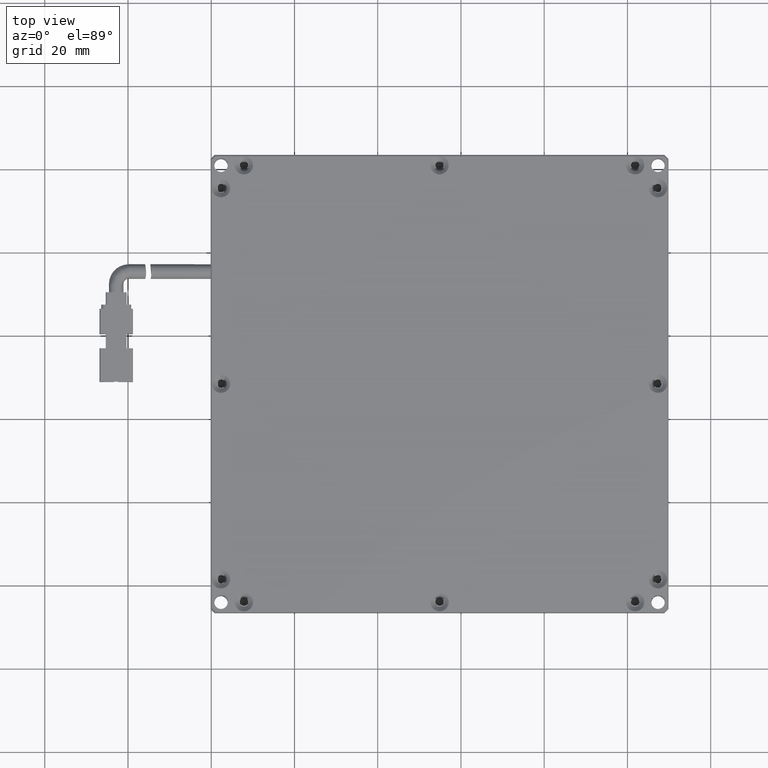
[diagram: clean part render]
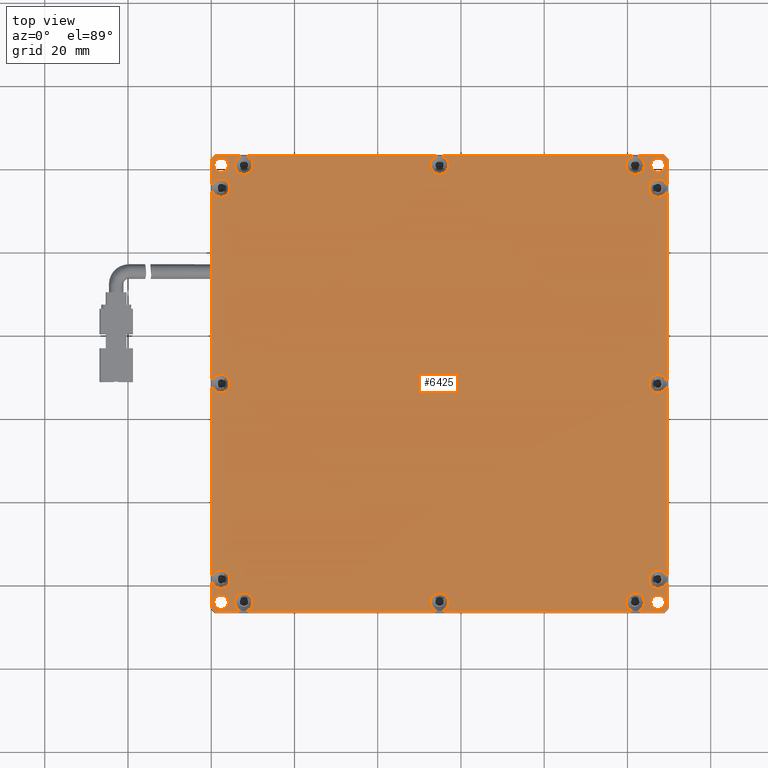
[diagram: same view with one face highlighted and labeled with its STEP entity id]
A machine part, top view. The second image highlights one B-rep face of the part: STEP entity #6425.
In plain terms, the highlighted planar face has unit normal (0, 0, -1).
Its self-contained STEP definition (entity closure, byte-faithful):
#85 = EDGE_CURVE ( 'NONE', #5199, #15568, #4372, .T. ) ;
#96 = CARTESIAN_POINT ( 'NONE',  ( 49.55490645284352500, 55.40015273005042200, 1.499999999976253900 ) ) ;
#155 = AXIS2_PLACEMENT_3D ( 'NONE', #5475, #15140, #6818 ) ;
#231 = CARTESIAN_POINT ( 'NONE',  ( -57.64509354715999500, 60.90015273004998200, 1.499999999976394900 ) ) ;
#249 = AXIS2_PLACEMENT_3D ( 'NONE', #1107, #10677, #2466 ) ;
#281 = AXIS2_PLACEMENT_3D ( 'NONE', #2898, #12512, #4283 ) ;
#357 = ORIENTED_EDGE ( 'NONE', *, *, #1238, .F. ) ;
#407 = DIRECTION ( 'NONE',  ( 1.000000000000000000, 0.0000000000000000000, 0.0000000000000000000 ) ) ;
#486 = VECTOR ( 'NONE', #16577, 999.9999999999998900 ) ;
#519 = ORIENTED_EDGE ( 'NONE', *, *, #7187, .F. ) ;
#542 = EDGE_CURVE ( 'NONE', #14744, #6458, #9240, .T. ) ;
#642 = AXIS2_PLACEMENT_3D ( 'NONE', #7497, #17238, #8880 ) ;
#687 = LINE ( 'NONE', #14745, #14904 ) ;
#710 = ORIENTED_EDGE ( 'NONE', *, *, #6946, .F. ) ;
#723 = VERTEX_POINT ( 'NONE', #6143 ) ;
#766 = CIRCLE ( 'NONE', #16352, 2.200000000007015900 ) ;
#779 = EDGE_CURVE ( 'NONE', #6064, #3502, #687, .T. ) ;
#782 = CARTESIAN_POINT ( 'NONE',  ( 47.35490645284001200, -44.09984726994999000, 1.499999999976394900 ) ) ;
#783 = CIRCLE ( 'NONE', #7937, 2.200000000007008800 ) ;
#785 = EDGE_CURVE ( 'NONE', #2495, #4026, #1968, .T. ) ;
#795 = VECTOR ( 'NONE', #6068, 1000.000000000000000 ) ;
#874 = VERTEX_POINT ( 'NONE', #3578 ) ;
#931 = VECTOR ( 'NONE', #8991, 1000.000000000000000 ) ;
#936 = CIRCLE ( 'NONE', #16247, 2.200000000007036800 ) ;
#947 = CARTESIAN_POINT ( 'NONE',  ( -49.94509354715299300, -44.09984726994999000, 1.499999999976502800 ) ) ;
#968 = EDGE_LOOP ( 'NONE', ( #1049, #10871 ) ) ;
#978 = EDGE_LOOP ( 'NONE', ( #10163, #10316 ) ) ;
#999 = CARTESIAN_POINT ( 'NONE',  ( -59.84509354716350800, -38.59984726995022400, 1.499999999976253400 ) ) ;
#1049 = ORIENTED_EDGE ( 'NONE', *, *, #12624, .F. ) ;
#1071 = ORIENTED_EDGE ( 'NONE', *, *, #6629, .F. ) ;
#1076 = DIRECTION ( 'NONE',  ( 1.000000000000000000, 0.0000000000000000000, 0.0000000000000000000 ) ) ;
#1096 = EDGE_CURVE ( 'NONE', #11779, #2130, #6961, .T. ) ;
#1107 = CARTESIAN_POINT ( 'NONE',  ( -57.64509354715999500, -44.09984726994999000, 1.499999999976394900 ) ) ;
#1118 = FACE_OUTER_BOUND ( 'NONE', #14665, .T. ) ;
#1141 = EDGE_CURVE ( 'NONE', #1596, #2858, #2480, .T. ) ;
#1175 = DIRECTION ( 'NONE',  ( 0.0000000000000000000, -1.000000000000000000, 0.0000000000000000000 ) ) ;
#1238 = EDGE_CURVE ( 'NONE', #13650, #14744, #17404, .T. ) ;
#1250 = DIRECTION ( 'NONE',  ( 1.000000000000000000, 0.0000000000000000000, 0.0000000000000000000 ) ) ;
#1285 = ORIENTED_EDGE ( 'NONE', *, *, #8982, .F. ) ;
#1302 = ORIENTED_EDGE ( 'NONE', *, *, #4347, .F. ) ;
#1309 = DIRECTION ( 'NONE',  ( 1.000000000000000000, 0.0000000000000000000, 0.0000000000000000000 ) ) ;
#1311 = CARTESIAN_POINT ( 'NONE',  ( -5.145093547154998800, 60.90015273004998200, 1.499999999976502800 ) ) ;
#1350 = CIRCLE ( 'NONE', #11545, 1.749999999999987600 ) ;
#1358 = DIRECTION ( 'NONE',  ( 1.000000000000000000, 0.0000000000000000000, 0.0000000000000000000 ) ) ;
#1359 = EDGE_CURVE ( 'NONE', #3502, #13005, #766, .T. ) ;
#1418 = AXIS2_PLACEMENT_3D ( 'NONE', #3795, #13427, #5176 ) ;
#1432 = AXIS2_PLACEMENT_3D ( 'NONE', #16194, #7842, #17579 ) ;
#1492 = DIRECTION ( 'NONE',  ( 0.0000000000000000000, 0.0000000000000000000, 1.000000000000000000 ) ) ;
#1528 = ORIENTED_EDGE ( 'NONE', *, *, #85, .F. ) ;
#1542 = FACE_BOUND ( 'NONE', #2755, .T. ) ;
#1568 = DIRECTION ( 'NONE',  ( 0.0000000000000000000, 2.464095846551414100E-017, 1.000000000000000000 ) ) ;
#1573 = VERTEX_POINT ( 'NONE', #12305 ) ;
#1578 = CARTESIAN_POINT ( 'NONE',  ( -5.145093547160004600, 63.10015273004995600, 1.499999999975999600 ) ) ;
#1596 = VERTEX_POINT ( 'NONE', #947 ) ;
#1607 = DIRECTION ( 'NONE',  ( 1.000000000000000000, 0.0000000000000000000, 0.0000000000000000000 ) ) ;
#1645 = LINE ( 'NONE', #4158, #6344 ) ;
#1689 = ORIENTED_EDGE ( 'NONE', *, *, #4419, .F. ) ;
#1705 = EDGE_CURVE ( 'NONE', #1843, #4830, #4160, .T. ) ;
#1727 = EDGE_CURVE ( 'NONE', #2130, #5785, #13422, .T. ) ;
#1751 = CARTESIAN_POINT ( 'NONE',  ( -57.64509354715999500, 55.40015273004998200, 1.499999999976499900 ) ) ;
#1776 = ORIENTED_EDGE ( 'NONE', *, *, #9325, .F. ) ;
#1803 = CARTESIAN_POINT ( 'NONE',  ( -54.34509354716699600, 60.90015273004998200, 1.499999999976502800 ) ) ;
#1843 = VERTEX_POINT ( 'NONE', #17612 ) ;
#1877 = AXIS2_PLACEMENT_3D ( 'NONE', #14486, #6202, #15904 ) ;
#1882 = AXIS2_PLACEMENT_3D ( 'NONE', #11861, #3619, #13250 ) ;
#1895 = AXIS2_PLACEMENT_3D ( 'NONE', #13646, #9497, #1309 ) ;
#1953 = AXIS2_PLACEMENT_3D ( 'NONE', #13369, #5121, #14774 ) ;
#1967 = CARTESIAN_POINT ( 'NONE',  ( -5.145093547160004600, -46.29984726994998600, 1.499999999975999600 ) ) ;
#1968 = CIRCLE ( 'NONE', #10250, 1.749999999999994700 ) ;
#2041 = CARTESIAN_POINT ( 'NONE',  ( -59.84509354715999800, 8.400152730050001200, 1.499999999975999600 ) ) ;
#2054 = EDGE_CURVE ( 'NONE', #3502, #4830, #11875, .T. ) ;
#2096 = AXIS2_PLACEMENT_3D ( 'NONE', #13604, #5334, #15011 ) ;
#2105 = DIRECTION ( 'NONE',  ( -1.000000000000000000, 0.0000000000000000000, 0.0000000000000000000 ) ) ;
#2130 = VERTEX_POINT ( 'NONE', #14668 ) ;
#2148 = VERTEX_POINT ( 'NONE', #999 ) ;
#2149 = DIRECTION ( 'NONE',  ( 1.000000000000000000, 0.0000000000000000000, 0.0000000000000000000 ) ) ;
#2211 = CIRCLE ( 'NONE', #4812, 2.200000000007022600 ) ;
#2240 = CARTESIAN_POINT ( 'NONE',  ( 49.55490645284352500, -38.59984726994954200, 1.499999999976253900 ) ) ;
#2265 = EDGE_CURVE ( 'NONE', #11249, #6064, #7729, .T. ) ;
#2271 = DIRECTION ( 'NONE',  ( 1.000000000000000000, -0.0000000000000000000, -0.0000000000000000000 ) ) ;
#2332 = CARTESIAN_POINT ( 'NONE',  ( -59.02082947844517200, 63.10015273004943000, 1.499999999974211700 ) ) ;
#2399 = EDGE_CURVE ( 'NONE', #11232, #874, #12889, .T. ) ;
#2466 = DIRECTION ( 'NONE',  ( 1.000000000000000000, 0.0000000000000000000, 0.0000000000000000000 ) ) ;
#2480 = CIRCLE ( 'NONE', #1895, 2.200000000007001700 ) ;
#2495 = VERTEX_POINT ( 'NONE', #10078 ) ;
#2520 = DIRECTION ( 'NONE',  ( 0.0000000000000000000, 0.0000000000000000000, 1.000000000000000000 ) ) ;
#2524 = VERTEX_POINT ( 'NONE', #14332 ) ;
#2534 = ORIENTED_EDGE ( 'NONE', *, *, #6037, .F. ) ;
#2538 = CARTESIAN_POINT ( 'NONE',  ( -57.64509354715999500, -38.59984726995000400, 1.499999999976499900 ) ) ;
#2546 = ORIENTED_EDGE ( 'NONE', *, *, #15579, .F. ) ;
#2566 = ORIENTED_EDGE ( 'NONE', *, *, #1096, .F. ) ;
#2616 = VERTEX_POINT ( 'NONE', #14521 ) ;
#2651 = DIRECTION ( 'NONE',  ( 1.000000000000000000, -0.0000000000000000000, -0.0000000000000000000 ) ) ;
#2678 = DIRECTION ( 'NONE',  ( 1.000000000000000000, 0.0000000000000000000, 0.0000000000000000000 ) ) ;
#2683 = LINE ( 'NONE', #13001, #13241 ) ;
#2685 = DIRECTION ( 'NONE',  ( 1.000000000000000000, 0.0000000000000000000, 0.0000000000000000000 ) ) ;
#2755 = EDGE_LOOP ( 'NONE', ( #1285, #519 ) ) ;
#2769 = DIRECTION ( 'NONE',  ( 0.0000000000000000000, -0.0000000000000000000, 1.000000000000000000 ) ) ;
#2778 = AXIS2_PLACEMENT_3D ( 'NONE', #7754, #17492, #9129 ) ;
#2790 = ORIENTED_EDGE ( 'NONE', *, *, #7610, .F. ) ;
#2846 = CARTESIAN_POINT ( 'NONE',  ( -52.14509354715999500, -44.09984726994999000, 1.499999999976502800 ) ) ;
#2858 = VERTEX_POINT ( 'NONE', #16605 ) ;
#2891 = VECTOR ( 'NONE', #2105, 1000.000000000000000 ) ;
#2898 = CARTESIAN_POINT ( 'NONE',  ( 47.35490645284001200, 55.40015273004998200, 1.499999999976507500 ) ) ;
#2912 = DIRECTION ( 'NONE',  ( 0.0000000000000000000, -0.0000000000000000000, 1.000000000000000000 ) ) ;
#2992 = CARTESIAN_POINT ( 'NONE',  ( -5.145093547154998800, 60.90015273004998200, 1.499999999976502800 ) ) ;
#3067 = ORIENTED_EDGE ( 'NONE', *, *, #13908, .F. ) ;
#3089 = ORIENTED_EDGE ( 'NONE', *, *, #10741, .F. ) ;
#3104 = CARTESIAN_POINT ( 'NONE',  ( 39.65490645283296100, 60.90015273004998200, 1.499999999976501000 ) ) ;
#3114 = DIRECTION ( 'NONE',  ( 0.0000000000000000000, -1.000000000000000000, 0.0000000000000000000 ) ) ;
#3188 = EDGE_CURVE ( 'NONE', #3623, #9952, #17419, .T. ) ;
#3253 = VERTEX_POINT ( 'NONE', #15007 ) ;
#3271 = CARTESIAN_POINT ( 'NONE',  ( -59.84509354715999800, 8.400152730050001200, 1.499999999975999600 ) ) ;
#3366 = AXIS2_PLACEMENT_3D ( 'NONE', #10981, #2769, #12384 ) ;
#3481 = VERTEX_POINT ( 'NONE', #3104 ) ;
#3502 = VERTEX_POINT ( 'NONE', #16947 ) ;
#3578 = CARTESIAN_POINT ( 'NONE',  ( -55.89509354716000200, 60.90015273004998200, 1.499999999976394900 ) ) ;
#3598 = CARTESIAN_POINT ( 'NONE',  ( -55.89509354716000200, -44.09984726994999000, 1.499999999976394900 ) ) ;
#3619 = DIRECTION ( 'NONE',  ( 0.0000000000000000000, -0.0000000000000000000, 1.000000000000000000 ) ) ;
#3623 = VERTEX_POINT ( 'NONE', #10532 ) ;
#3690 = CARTESIAN_POINT ( 'NONE',  ( -57.64509354715999500, -40.79984726995701300, 1.499999999976499900 ) ) ;
#3740 = VERTEX_POINT ( 'NONE', #10872 ) ;
#3773 = CARTESIAN_POINT ( 'NONE',  ( 49.55490645284000100, 8.400152730049994100, 1.499999999975999600 ) ) ;
#3795 = CARTESIAN_POINT ( 'NONE',  ( -52.14509354715999500, 60.90015273004998200, 1.499999999976502800 ) ) ;
#3896 = LINE ( 'NONE', #3773, #7071 ) ;
#3932 = DIRECTION ( 'NONE',  ( 0.0000000000000000000, -1.000000000000000000, 0.0000000000000000000 ) ) ;
#3984 = CARTESIAN_POINT ( 'NONE',  ( 47.35490645284001200, -38.59984726995000400, 1.499999999976507500 ) ) ;
#3996 = EDGE_CURVE ( 'NONE', #15568, #3740, #5994, .T. ) ;
#4009 = CIRCLE ( 'NONE', #1432, 2.200000000007015900 ) ;
#4026 = VERTEX_POINT ( 'NONE', #4765 ) ;
#4126 = LINE ( 'NONE', #15155, #486 ) ;
#4135 = EDGE_CURVE ( 'NONE', #14626, #1596, #7238, .T. ) ;
#4158 = CARTESIAN_POINT ( 'NONE',  ( 48.73064238413891800, 63.10015273004886200, 1.499999999974435100 ) ) ;
#4160 = CIRCLE ( 'NONE', #10768, 2.200000000007022600 ) ;
#4195 = CARTESIAN_POINT ( 'NONE',  ( 44.05490645284703500, 60.90015273004998200, 1.499999999976501000 ) ) ;
#4226 = DIRECTION ( 'NONE',  ( 1.000000000000000000, 0.0000000000000000000, 0.0000000000000000000 ) ) ;
#4283 = DIRECTION ( 'NONE',  ( 1.000000000000000000, 0.0000000000000000000, 0.0000000000000000000 ) ) ;
#4347 = EDGE_CURVE ( 'NONE', #3253, #3481, #12649, .T. ) ;
#4372 = CIRCLE ( 'NONE', #15651, 2.200000000007008800 ) ;
#4374 = DIRECTION ( 'NONE',  ( 1.000000000000000000, 0.0000000000000000000, 0.0000000000000000000 ) ) ;
#4419 = EDGE_CURVE ( 'NONE', #15780, #9700, #7221, .T. ) ;
#4532 = EDGE_CURVE ( 'NONE', #6064, #11249, #11995, .T. ) ;
#4543 = DIRECTION ( 'NONE',  ( -0.0000000000000000000, -1.000000000000000000, -0.0000000000000000000 ) ) ;
#4584 = CARTESIAN_POINT ( 'NONE',  ( 48.73064238413535100, -46.29984726994883500, 1.499999999972905000 ) ) ;
#4724 = DIRECTION ( 'NONE',  ( -0.0000000000000000000, -1.000000000000000000, -0.0000000000000000000 ) ) ;
#4755 = FACE_BOUND ( 'NONE', #968, .T. ) ;
#4765 = CARTESIAN_POINT ( 'NONE',  ( 45.60490645284001900, 60.90015273004998200, 1.499999999976394900 ) ) ;
#4769 = DIRECTION ( 'NONE',  ( 0.0000000000000000000, -0.0000000000000000000, 1.000000000000000000 ) ) ;
#4812 = AXIS2_PLACEMENT_3D ( 'NONE', #3984, #13638, #5370 ) ;
#4830 = VERTEX_POINT ( 'NONE', #2240 ) ;
#4868 = VECTOR ( 'NONE', #2651, 1000.000000000000000 ) ;
#4881 = EDGE_CURVE ( 'NONE', #13005, #3502, #4009, .T. ) ;
#4911 = CIRCLE ( 'NONE', #2778, 2.199999999999511200 ) ;
#5036 = CARTESIAN_POINT ( 'NONE',  ( 48.73064238413660100, 63.10015273005134900, 1.499999999974948500 ) ) ;
#5120 = ORIENTED_EDGE ( 'NONE', *, *, #10886, .F. ) ;
#5121 = DIRECTION ( 'NONE',  ( 0.0000000000000000000, 0.0000000000000000000, -1.000000000000000000 ) ) ;
#5176 = DIRECTION ( 'NONE',  ( 1.000000000000000000, 0.0000000000000000000, 0.0000000000000000000 ) ) ;
#5199 = VERTEX_POINT ( 'NONE', #5929 ) ;
#5311 = CIRCLE ( 'NONE', #16312, 2.199999999999511200 ) ;
#5314 = DIRECTION ( 'NONE',  ( 0.0000000000000000000, -1.000000000000000000, 0.0000000000000000000 ) ) ;
#5334 = DIRECTION ( 'NONE',  ( 0.0000000000000000000, 2.464095846551420200E-017, 1.000000000000000000 ) ) ;
#5342 = DIRECTION ( 'NONE',  ( 0.0000000000000000000, -0.0000000000000000000, 1.000000000000000000 ) ) ;
#5370 = DIRECTION ( 'NONE',  ( 1.000000000000000000, 0.0000000000000000000, 0.0000000000000000000 ) ) ;
#5395 = CARTESIAN_POINT ( 'NONE',  ( -57.64509354715999500, 10.60015273005700800, 1.499999999976503200 ) ) ;
#5413 = AXIS2_PLACEMENT_3D ( 'NONE', #13016, #4769, #14416 ) ;
#5475 = CARTESIAN_POINT ( 'NONE',  ( -52.14509354715999500, 60.90015273004998200, 1.499999999976502800 ) ) ;
#5562 = CARTESIAN_POINT ( 'NONE',  ( 41.85490645283999800, -44.09984726994999000, 1.499999999976497900 ) ) ;
#5574 = VECTOR ( 'NONE', #14298, 1000.000000000000000 ) ;
#5648 = ORIENTED_EDGE ( 'NONE', *, *, #9015, .F. ) ;
#5664 = ORIENTED_EDGE ( 'NONE', *, *, #8401, .F. ) ;
#5737 = ORIENTED_EDGE ( 'NONE', *, *, #9373, .F. ) ;
#5764 = DIRECTION ( 'NONE',  ( 0.0000000000000000000, -0.0000000000000000000, 1.000000000000000000 ) ) ;
#5785 = VERTEX_POINT ( 'NONE', #6262 ) ;
#5898 = CIRCLE ( 'NONE', #1877, 1.749999999999994700 ) ;
#5902 = CIRCLE ( 'NONE', #14452, 1.749999999999994700 ) ;
#5929 = CARTESIAN_POINT ( 'NONE',  ( -57.64509354715999500, 57.60015273005699000, 1.499999999976499900 ) ) ;
#5930 = ORIENTED_EDGE ( 'NONE', *, *, #16295, .F. ) ;
#5940 = EDGE_CURVE ( 'NONE', #4830, #1843, #2211, .T. ) ;
#5994 = LINE ( 'NONE', #3271, #5574 ) ;
#6037 = EDGE_CURVE ( 'NONE', #2858, #14626, #12756, .T. ) ;
#6064 = VERTEX_POINT ( 'NONE', #96 ) ;
#6068 = DIRECTION ( 'NONE',  ( -0.7071067811894643500, 0.7071067811836307900, -3.174797948382893600E-012 ) ) ;
#6082 = VERTEX_POINT ( 'NONE', #15281 ) ;
#6105 = CARTESIAN_POINT ( 'NONE',  ( 45.60490645284001900, -44.09984726994999000, 1.499999999976394900 ) ) ;
#6143 = CARTESIAN_POINT ( 'NONE',  ( -5.145093547157158800, -46.29984726994974400, 1.499999999976251400 ) ) ;
#6202 = DIRECTION ( 'NONE',  ( 0.0000000000000000000, 0.0000000000000000000, 1.000000000000000000 ) ) ;
#6231 = VERTEX_POINT ( 'NONE', #4584 ) ;
#6262 = CARTESIAN_POINT ( 'NONE',  ( -57.64509354715999500, 6.200152730042989700, 1.499999999976503200 ) ) ;
#6296 = CARTESIAN_POINT ( 'NONE',  ( -59.84509354715999800, 8.400152730050001200, 1.499999999975999600 ) ) ;
#6342 = DIRECTION ( 'NONE',  ( 0.0000000000000000000, 2.464095846559238600E-017, 1.000000000000000000 ) ) ;
#6344 = VECTOR ( 'NONE', #13849, 1000.000000000000000 ) ;
#6425 = ADVANCED_FACE ( 'NONE', ( #1542, #8812, #8366, #4755, #1118 ), #7790, .F. ) ;
#6458 = VERTEX_POINT ( 'NONE', #17580 ) ;
#6629 = EDGE_CURVE ( 'NONE', #14626, #2524, #8791, .T. ) ;
#6797 = EDGE_CURVE ( 'NONE', #6231, #13650, #7916, .T. ) ;
#6806 = ORIENTED_EDGE ( 'NONE', *, *, #8226, .F. ) ;
#6818 = DIRECTION ( 'NONE',  ( 1.000000000000000000, 0.0000000000000000000, 0.0000000000000000000 ) ) ;
#6844 = ORIENTED_EDGE ( 'NONE', *, *, #1705, .F. ) ;
#6938 = ORIENTED_EDGE ( 'NONE', *, *, #2265, .F. ) ;
#6946 = EDGE_CURVE ( 'NONE', #3253, #10613, #12884, .T. ) ;
#6961 = CIRCLE ( 'NONE', #16129, 2.200000000007008800 ) ;
#7065 = VERTEX_POINT ( 'NONE', #13119 ) ;
#7071 = VECTOR ( 'NONE', #13406, 1000.000000000000000 ) ;
#7095 = CIRCLE ( 'NONE', #7852, 2.200000000007008800 ) ;
#7113 = VERTEX_POINT ( 'NONE', #16084 ) ;
#7187 = EDGE_CURVE ( 'NONE', #7065, #10054, #11568, .T. ) ;
#7204 = AXIS2_PLACEMENT_3D ( 'NONE', #17794, #9426, #1250 ) ;
#7220 = CIRCLE ( 'NONE', #16444, 2.200000000007001700 ) ;
#7221 = LINE ( 'NONE', #1578, #14174 ) ;
#7238 = CIRCLE ( 'NONE', #1882, 2.200000000007001700 ) ;
#7311 = CARTESIAN_POINT ( 'NONE',  ( -5.145093547154998800, -44.09984726994999000, 1.499999999976503200 ) ) ;
#7359 = CARTESIAN_POINT ( 'NONE',  ( -59.02082947844625200, -46.29984726994823800, 1.499999999973532100 ) ) ;
#7401 = ORIENTED_EDGE ( 'NONE', *, *, #12749, .F. ) ;
#7402 = VECTOR ( 'NONE', #7646, 1000.000000000000000 ) ;
#7497 = CARTESIAN_POINT ( 'NONE',  ( -57.64509354715999500, -38.59984726995000400, 1.499999999976499900 ) ) ;
#7610 = EDGE_CURVE ( 'NONE', #11278, #2148, #16139, .T. ) ;
#7646 = DIRECTION ( 'NONE',  ( 0.0000000000000000000, 1.000000000000000000, 0.0000000000000000000 ) ) ;
#7707 = ORIENTED_EDGE ( 'NONE', *, *, #779, .F. ) ;
#7729 = CIRCLE ( 'NONE', #9374, 2.200000000007022600 ) ;
#7754 = CARTESIAN_POINT ( 'NONE',  ( -5.145093547154998800, 60.90015273004998200, 1.499999999976502800 ) ) ;
#7790 = PLANE ( 'NONE',  #1953 ) ;
#7842 = DIRECTION ( 'NONE',  ( 0.0000000000000000000, 0.0000000000000000000, 1.000000000000000000 ) ) ;
#7852 = AXIS2_PLACEMENT_3D ( 'NONE', #17725, #9350, #1175 ) ;
#7903 = DIRECTION ( 'NONE',  ( 0.0000000000000000000, 0.0000000000000000000, 1.000000000000000000 ) ) ;
#7916 = LINE ( 'NONE', #17083, #9634 ) ;
#7930 = VECTOR ( 'NONE', #9581, 1000.000000000000000 ) ;
#7937 = AXIS2_PLACEMENT_3D ( 'NONE', #2538, #12164, #3932 ) ;
#8015 = CARTESIAN_POINT ( 'NONE',  ( 41.85490645284033900, -46.29984726995351000, 1.499999999976249000 ) ) ;
#8051 = DIRECTION ( 'NONE',  ( 0.0000000000000000000, 2.464095846551414100E-017, 1.000000000000000000 ) ) ;
#8127 = DIRECTION ( 'NONE',  ( 0.0000000000000000000, 2.464095846551412200E-017, 1.000000000000000000 ) ) ;
#8130 = AXIS2_PLACEMENT_3D ( 'NONE', #14039, #5764, #15458 ) ;
#8145 = CARTESIAN_POINT ( 'NONE',  ( 41.85490645283999800, -44.09984726994999000, 1.499999999976497900 ) ) ;
#8158 = ORIENTED_EDGE ( 'NONE', *, *, #1141, .F. ) ;
#8164 = CARTESIAN_POINT ( 'NONE',  ( 47.35490645284001200, 55.40015273004998200, 1.499999999976507500 ) ) ;
#8185 = EDGE_CURVE ( 'NONE', #723, #14626, #16541, .T. ) ;
#8226 = EDGE_CURVE ( 'NONE', #9952, #3623, #5898, .T. ) ;
#8326 = VERTEX_POINT ( 'NONE', #3690 ) ;
#8366 = FACE_BOUND ( 'NONE', #978, .T. ) ;
#8401 = EDGE_CURVE ( 'NONE', #2148, #8326, #783, .T. ) ;
#8450 = EDGE_CURVE ( 'NONE', #4026, #2495, #5902, .T. ) ;
#8550 = ORIENTED_EDGE ( 'NONE', *, *, #11472, .F. ) ;
#8600 = DIRECTION ( 'NONE',  ( 0.0000000000000000000, -0.0000000000000000000, 1.000000000000000000 ) ) ;
#8617 = CARTESIAN_POINT ( 'NONE',  ( -59.84509354715890300, 62.27588866133687900, 1.499999999974440400 ) ) ;
#8705 = DIRECTION ( 'NONE',  ( 0.0000000000000000000, -1.000000000000000000, 0.0000000000000000000 ) ) ;
#8758 = CIRCLE ( 'NONE', #10149, 2.199999999999514800 ) ;
#8763 = CARTESIAN_POINT ( 'NONE',  ( -52.14509354715965400, -46.29984726995348900, 1.499999999976251200 ) ) ;
#8791 = LINE ( 'NONE', #12430, #7930 ) ;
#8812 = FACE_BOUND ( 'NONE', #13580, .T. ) ;
#8880 = DIRECTION ( 'NONE',  ( 0.0000000000000000000, -1.000000000000000000, 0.0000000000000000000 ) ) ;
#8978 = ORIENTED_EDGE ( 'NONE', *, *, #10630, .F. ) ;
#8982 = EDGE_CURVE ( 'NONE', #10054, #7065, #1350, .T. ) ;
#8991 = DIRECTION ( 'NONE',  ( -0.0000000000000000000, -1.000000000000000000, -0.0000000000000000000 ) ) ;
#9015 = EDGE_CURVE ( 'NONE', #6458, #13650, #936, .T. ) ;
#9129 = DIRECTION ( 'NONE',  ( 1.000000000000000000, 0.0000000000000000000, 0.0000000000000000000 ) ) ;
#9240 = CIRCLE ( 'NONE', #11798, 2.200000000007036800 ) ;
#9275 = ORIENTED_EDGE ( 'NONE', *, *, #15335, .F. ) ;
#9283 = ORIENTED_EDGE ( 'NONE', *, *, #1727, .F. ) ;
#9325 = EDGE_CURVE ( 'NONE', #723, #1573, #12938, .T. ) ;
#9350 = DIRECTION ( 'NONE',  ( 0.0000000000000000000, 2.464095846551414100E-017, 1.000000000000000000 ) ) ;
#9356 = ORIENTED_EDGE ( 'NONE', *, *, #5940, .F. ) ;
#9373 = EDGE_CURVE ( 'NONE', #4830, #14696, #3896, .T. ) ;
#9374 = AXIS2_PLACEMENT_3D ( 'NONE', #8164, #17897, #9529 ) ;
#9426 = DIRECTION ( 'NONE',  ( 0.0000000000000000000, -0.0000000000000000000, 1.000000000000000000 ) ) ;
#9497 = DIRECTION ( 'NONE',  ( 0.0000000000000000000, -0.0000000000000000000, 1.000000000000000000 ) ) ;
#9518 = DIRECTION ( 'NONE',  ( 1.000000000000000000, 0.0000000000000000000, 0.0000000000000000000 ) ) ;
#9528 = CARTESIAN_POINT ( 'NONE',  ( -5.145093547160004600, 63.10015273004995600, 1.499999999975999600 ) ) ;
#9529 = DIRECTION ( 'NONE',  ( 1.000000000000000000, 0.0000000000000000000, 0.0000000000000000000 ) ) ;
#9540 = DIRECTION ( 'NONE',  ( 0.0000000000000000000, 0.0000000000000000000, 1.000000000000000000 ) ) ;
#9581 = DIRECTION ( 'NONE',  ( -1.000000000000000000, 0.0000000000000000000, 0.0000000000000000000 ) ) ;
#9611 = ORIENTED_EDGE ( 'NONE', *, *, #12516, .F. ) ;
#9634 = VECTOR ( 'NONE', #10003, 1000.000000000000000 ) ;
#9653 = CARTESIAN_POINT ( 'NONE',  ( -59.39509354715998100, 60.90015273004998200, 1.499999999976394900 ) ) ;
#9669 = CARTESIAN_POINT ( 'NONE',  ( -5.145093547160004600, 63.10015273004995600, 1.499999999975999600 ) ) ;
#9700 = VERTEX_POINT ( 'NONE', #13742 ) ;
#9713 = CIRCLE ( 'NONE', #5413, 2.200000000007036800 ) ;
#9793 = DIRECTION ( 'NONE',  ( 0.0000000000000000000, -0.0000000000000000000, 1.000000000000000000 ) ) ;
#9952 = VERTEX_POINT ( 'NONE', #6105 ) ;
#10003 = DIRECTION ( 'NONE',  ( -1.000000000000000000, 0.0000000000000000000, 0.0000000000000000000 ) ) ;
#10005 = LINE ( 'NONE', #9669, #13724 ) ;
#10007 = DIRECTION ( 'NONE',  ( 0.7071067811870565000, 0.7071067811860385400, -7.072468389092289300E-013 ) ) ;
#10054 = VERTEX_POINT ( 'NONE', #3598 ) ;
#10065 = ORIENTED_EDGE ( 'NONE', *, *, #11548, .F. ) ;
#10078 = CARTESIAN_POINT ( 'NONE',  ( 49.10490645284000500, 60.90015273004998200, 1.499999999976394900 ) ) ;
#10090 = CIRCLE ( 'NONE', #13654, 2.199999999999511200 ) ;
#10149 = AXIS2_PLACEMENT_3D ( 'NONE', #7311, #17056, #8705 ) ;
#10163 = ORIENTED_EDGE ( 'NONE', *, *, #785, .F. ) ;
#10250 = AXIS2_PLACEMENT_3D ( 'NONE', #16451, #2520, #15201 ) ;
#10316 = ORIENTED_EDGE ( 'NONE', *, *, #8450, .F. ) ;
#10332 = VERTEX_POINT ( 'NONE', #15312 ) ;
#10349 = DIRECTION ( 'NONE',  ( 0.0000000000000000000, 0.0000000000000000000, 1.000000000000000000 ) ) ;
#10369 = EDGE_CURVE ( 'NONE', #11848, #9700, #5311, .T. ) ;
#10466 = VERTEX_POINT ( 'NONE', #1803 ) ;
#10532 = CARTESIAN_POINT ( 'NONE',  ( 49.10490645284000500, -44.09984726994999000, 1.499999999976394900 ) ) ;
#10573 = VERTEX_POINT ( 'NONE', #13266 ) ;
#10613 = VERTEX_POINT ( 'NONE', #5036 ) ;
#10630 = EDGE_CURVE ( 'NONE', #3481, #15192, #15919, .T. ) ;
#10635 = CARTESIAN_POINT ( 'NONE',  ( 45.15490645283299600, 8.400152730049999400, 1.499999999976502800 ) ) ;
#10677 = DIRECTION ( 'NONE',  ( 0.0000000000000000000, -0.0000000000000000000, 1.000000000000000000 ) ) ;
#10741 = EDGE_CURVE ( 'NONE', #16723, #15780, #10005, .T. ) ;
#10768 = AXIS2_PLACEMENT_3D ( 'NONE', #11061, #1492, #1076 ) ;
#10802 = DIRECTION ( 'NONE',  ( 0.0000000000000000000, -1.000000000000000000, 0.0000000000000000000 ) ) ;
#10841 = CIRCLE ( 'NONE', #15564, 2.200000000007008800 ) ;
#10871 = ORIENTED_EDGE ( 'NONE', *, *, #2399, .F. ) ;
#10872 = CARTESIAN_POINT ( 'NONE',  ( -59.84509354715822800, 62.27588866133754700, 1.499999999974830100 ) ) ;
#10878 = DIRECTION ( 'NONE',  ( 0.0000000000000000000, -0.0000000000000000000, 1.000000000000000000 ) ) ;
#10886 = EDGE_CURVE ( 'NONE', #2524, #11278, #12172, .T. ) ;
#10887 = DIRECTION ( 'NONE',  ( 0.0000000000000000000, -0.0000000000000000000, 1.000000000000000000 ) ) ;
#10918 = ORIENTED_EDGE ( 'NONE', *, *, #6797, .F. ) ;
#10981 = CARTESIAN_POINT ( 'NONE',  ( 41.85490645283999800, 60.90015273004998200, 1.499999999976501000 ) ) ;
#11056 = DIRECTION ( 'NONE',  ( 1.000000000000000000, -0.0000000000000000000, -0.0000000000000000000 ) ) ;
#11061 = CARTESIAN_POINT ( 'NONE',  ( 47.35490645284001200, -38.59984726995000400, 1.499999999976507500 ) ) ;
#11125 = CARTESIAN_POINT ( 'NONE',  ( 41.85490645283999800, -44.09984726994999000, 1.499999999976497900 ) ) ;
#11135 = ORIENTED_EDGE ( 'NONE', *, *, #17333, .F. ) ;
#11151 = DIRECTION ( 'NONE',  ( 0.0000000000000000000, -1.000000000000000000, 0.0000000000000000000 ) ) ;
#11164 = DIRECTION ( 'NONE',  ( 1.000000000000000000, -0.0000000000000000000, -0.0000000000000000000 ) ) ;
#11222 = EDGE_CURVE ( 'NONE', #9700, #3253, #15901, .T. ) ;
#11232 = VERTEX_POINT ( 'NONE', #9653 ) ;
#11245 = EDGE_CURVE ( 'NONE', #10613, #10332, #1645, .T. ) ;
#11249 = VERTEX_POINT ( 'NONE', #12439 ) ;
#11278 = VERTEX_POINT ( 'NONE', #15269 ) ;
#11310 = CARTESIAN_POINT ( 'NONE',  ( 49.55490645284000100, 8.400152730049994100, 1.499999999975999600 ) ) ;
#11330 = DIRECTION ( 'NONE',  ( 0.0000000000000000000, 2.464095846551420200E-017, 1.000000000000000000 ) ) ;
#11472 = EDGE_CURVE ( 'NONE', #2148, #2130, #2683, .T. ) ;
#11545 = AXIS2_PLACEMENT_3D ( 'NONE', #13610, #5342, #15019 ) ;
#11548 = EDGE_CURVE ( 'NONE', #13650, #723, #13880, .T. ) ;
#11568 = CIRCLE ( 'NONE', #249, 1.749999999999987600 ) ;
#11603 = ORIENTED_EDGE ( 'NONE', *, *, #3996, .F. ) ;
#11647 = DIRECTION ( 'NONE',  ( 0.0000000000000000000, 1.000000000000000000, 0.0000000000000000000 ) ) ;
#11718 = EDGE_CURVE ( 'NONE', #10573, #5199, #11920, .T. ) ;
#11719 = AXIS2_PLACEMENT_3D ( 'NONE', #12554, #1568, #11151 ) ;
#11753 = CARTESIAN_POINT ( 'NONE',  ( -59.84509354716350800, 55.40015273004975400, 1.499999999976253400 ) ) ;
#11779 = VERTEX_POINT ( 'NONE', #5395 ) ;
#11794 = AXIS2_PLACEMENT_3D ( 'NONE', #14636, #6342, #16068 ) ;
#11798 = AXIS2_PLACEMENT_3D ( 'NONE', #5562, #10887, #2685 ) ;
#11848 = VERTEX_POINT ( 'NONE', #12547 ) ;
#11861 = CARTESIAN_POINT ( 'NONE',  ( -52.14509354715999500, -44.09984726994999000, 1.499999999976502800 ) ) ;
#11875 = LINE ( 'NONE', #15970, #931 ) ;
#11888 = CARTESIAN_POINT ( 'NONE',  ( -5.145093547160004600, 63.10015273004995600, 1.499999999975999600 ) ) ;
#11920 = CIRCLE ( 'NONE', #2096, 2.200000000007008800 ) ;
#11950 = ORIENTED_EDGE ( 'NONE', *, *, #10369, .F. ) ;
#11995 = CIRCLE ( 'NONE', #281, 2.200000000007022600 ) ;
#12164 = DIRECTION ( 'NONE',  ( 0.0000000000000000000, 2.464095846551412200E-017, 1.000000000000000000 ) ) ;
#12172 = LINE ( 'NONE', #7359, #795 ) ;
#12185 = AXIS2_PLACEMENT_3D ( 'NONE', #2846, #12453, #4226 ) ;
#12221 = AXIS2_PLACEMENT_3D ( 'NONE', #782, #10349, #2149 ) ;
#12253 = CIRCLE ( 'NONE', #13292, 1.749999999999987600 ) ;
#12305 = CARTESIAN_POINT ( 'NONE',  ( -5.145093547154998800, -41.89984726995047700, 1.499999999976503200 ) ) ;
#12363 = ORIENTED_EDGE ( 'NONE', *, *, #11222, .F. ) ;
#12384 = DIRECTION ( 'NONE',  ( 1.000000000000000000, 0.0000000000000000000, 0.0000000000000000000 ) ) ;
#12397 = VECTOR ( 'NONE', #11647, 1000.000000000000000 ) ;
#12402 = CARTESIAN_POINT ( 'NONE',  ( -52.14509354716011600, 63.10015273005348000, 1.499999999976251200 ) ) ;
#12430 = CARTESIAN_POINT ( 'NONE',  ( -5.145093547160004600, -46.29984726994998600, 1.499999999975999600 ) ) ;
#12439 = CARTESIAN_POINT ( 'NONE',  ( 45.15490645283298900, 55.40015273004998200, 1.499999999976507500 ) ) ;
#12445 = VECTOR ( 'NONE', #4543, 1000.000000000000000 ) ;
#12453 = DIRECTION ( 'NONE',  ( 0.0000000000000000000, -0.0000000000000000000, 1.000000000000000000 ) ) ;
#12512 = DIRECTION ( 'NONE',  ( 0.0000000000000000000, 0.0000000000000000000, 1.000000000000000000 ) ) ;
#12516 = EDGE_CURVE ( 'NONE', #9700, #2616, #10090, .T. ) ;
#12529 = DIRECTION ( 'NONE',  ( 1.000000000000000000, 0.0000000000000000000, 0.0000000000000000000 ) ) ;
#12547 = CARTESIAN_POINT ( 'NONE',  ( -2.945093547155488000, 60.90015273004998200, 1.499999999976502800 ) ) ;
#12554 = CARTESIAN_POINT ( 'NONE',  ( -57.64509354715999500, 8.400152730049999400, 1.499999999976503200 ) ) ;
#12598 = DIRECTION ( 'NONE',  ( 0.0000000000000000000, -0.0000000000000000000, 1.000000000000000000 ) ) ;
#12624 = EDGE_CURVE ( 'NONE', #874, #11232, #12253, .T. ) ;
#12649 = CIRCLE ( 'NONE', #3366, 2.200000000007036800 ) ;
#12715 = ORIENTED_EDGE ( 'NONE', *, *, #8185, .F. ) ;
#12749 = EDGE_CURVE ( 'NONE', #10332, #6064, #12888, .T. ) ;
#12756 = CIRCLE ( 'NONE', #12185, 2.200000000007001700 ) ;
#12771 = EDGE_CURVE ( 'NONE', #1573, #723, #8758, .T. ) ;
#12777 = ORIENTED_EDGE ( 'NONE', *, *, #13468, .F. ) ;
#12850 = EDGE_CURVE ( 'NONE', #8326, #6082, #13974, .T. ) ;
#12884 = LINE ( 'NONE', #11888, #16623 ) ;
#12889 = CIRCLE ( 'NONE', #8130, 1.749999999999987600 ) ;
#12888 = LINE ( 'NONE', #11310, #12445 ) ;
#12938 = CIRCLE ( 'NONE', #11794, 2.199999999999514800 ) ;
#12967 = DIRECTION ( 'NONE',  ( -1.000000000000000000, 0.0000000000000000000, 0.0000000000000000000 ) ) ;
#13001 = CARTESIAN_POINT ( 'NONE',  ( -59.84509354715999800, 8.400152730050001200, 1.499999999975999600 ) ) ;
#13005 = VERTEX_POINT ( 'NONE', #10635 ) ;
#13016 = CARTESIAN_POINT ( 'NONE',  ( 41.85490645283999800, 60.90015273004998200, 1.499999999976501000 ) ) ;
#13119 = CARTESIAN_POINT ( 'NONE',  ( -59.39509354715998100, -44.09984726994999000, 1.499999999976394900 ) ) ;
#13241 = VECTOR ( 'NONE', #14388, 1000.000000000000000 ) ;
#13243 = VECTOR ( 'NONE', #12967, 1000.000000000000000 ) ;
#13248 = CARTESIAN_POINT ( 'NONE',  ( -57.64509354715999500, 55.40015273004998200, 1.499999999976499900 ) ) ;
#13250 = DIRECTION ( 'NONE',  ( 1.000000000000000000, 0.0000000000000000000, 0.0000000000000000000 ) ) ;
#13266 = CARTESIAN_POINT ( 'NONE',  ( -57.64509354715999500, 53.20015273004297300, 1.499999999976499900 ) ) ;
#13292 = AXIS2_PLACEMENT_3D ( 'NONE', #231, #9793, #1607 ) ;
#13355 = ORIENTED_EDGE ( 'NONE', *, *, #4532, .F. ) ;
#13369 = CARTESIAN_POINT ( 'NONE',  ( 51.74290645284000300, -48.48784726994998800, 1.499999999975999900 ) ) ;
#13406 = DIRECTION ( 'NONE',  ( -0.0000000000000000000, -1.000000000000000000, -0.0000000000000000000 ) ) ;
#13422 = CIRCLE ( 'NONE', #11719, 2.200000000007008800 ) ;
#13427 = DIRECTION ( 'NONE',  ( 0.0000000000000000000, -0.0000000000000000000, 1.000000000000000000 ) ) ;
#13468 = EDGE_CURVE ( 'NONE', #2130, #15568, #14806, .T. ) ;
#13472 = LINE ( 'NONE', #8617, #17189 ) ;
#13491 = DIRECTION ( 'NONE',  ( 0.0000000000000000000, 2.464095846551420200E-017, 1.000000000000000000 ) ) ;
#13580 = EDGE_LOOP ( 'NONE', ( #14063, #6806 ) ) ;
#13604 = CARTESIAN_POINT ( 'NONE',  ( -57.64509354715999500, 55.40015273004998200, 1.499999999976499900 ) ) ;
#13610 = CARTESIAN_POINT ( 'NONE',  ( -57.64509354715999500, -44.09984726994999000, 1.499999999976394900 ) ) ;
#13638 = DIRECTION ( 'NONE',  ( 0.0000000000000000000, 0.0000000000000000000, 1.000000000000000000 ) ) ;
#13646 = CARTESIAN_POINT ( 'NONE',  ( -52.14509354715999500, -44.09984726994999000, 1.499999999976502800 ) ) ;
#13650 = VERTEX_POINT ( 'NONE', #8015 ) ;
#13654 = AXIS2_PLACEMENT_3D ( 'NONE', #1311, #10878, #2678 ) ;
#13724 = VECTOR ( 'NONE', #11056, 1000.000000000000000 ) ;
#13742 = CARTESIAN_POINT ( 'NONE',  ( -5.145093547157498100, 63.10015273004995600, 1.499999999976251200 ) ) ;
#13781 = ORIENTED_EDGE ( 'NONE', *, *, #2054, .F. ) ;
#13849 = DIRECTION ( 'NONE',  ( 0.7071067811824819400, -0.7071067811906132100, 1.538940846485713900E-012 ) ) ;
#13880 = LINE ( 'NONE', #14573, #2891 ) ;
#13908 = EDGE_CURVE ( 'NONE', #15568, #10573, #10841, .T. ) ;
#13923 = CIRCLE ( 'NONE', #155, 2.200000000007001700 ) ;
#13974 = CIRCLE ( 'NONE', #642, 2.200000000007008800 ) ;
#13975 = ORIENTED_EDGE ( 'NONE', *, *, #12850, .F. ) ;
#14012 = ORIENTED_EDGE ( 'NONE', *, *, #16849, .F. ) ;
#14039 = CARTESIAN_POINT ( 'NONE',  ( -57.64509354715999500, 60.90015273004998200, 1.499999999976394900 ) ) ;
#14063 = ORIENTED_EDGE ( 'NONE', *, *, #3188, .F. ) ;
#14149 = CIRCLE ( 'NONE', #1418, 2.200000000007001700 ) ;
#14174 = VECTOR ( 'NONE', #11164, 1000.000000000000000 ) ;
#14298 = DIRECTION ( 'NONE',  ( 0.0000000000000000000, 1.000000000000000000, 0.0000000000000000000 ) ) ;
#14332 = CARTESIAN_POINT ( 'NONE',  ( -59.02082947844575500, -46.29984726995021300, 1.499999999975614600 ) ) ;
#14388 = DIRECTION ( 'NONE',  ( 0.0000000000000000000, 1.000000000000000000, 0.0000000000000000000 ) ) ;
#14416 = DIRECTION ( 'NONE',  ( 1.000000000000000000, 0.0000000000000000000, 0.0000000000000000000 ) ) ;
#14452 = AXIS2_PLACEMENT_3D ( 'NONE', #17900, #9540, #1358 ) ;
#14486 = CARTESIAN_POINT ( 'NONE',  ( 47.35490645284001200, -44.09984726994999000, 1.499999999976394900 ) ) ;
#14521 = CARTESIAN_POINT ( 'NONE',  ( -7.345093547154510500, 60.90015273004998200, 1.499999999976502800 ) ) ;
#14573 = CARTESIAN_POINT ( 'NONE',  ( -5.145093547160004600, -46.29984726994998600, 1.499999999975999600 ) ) ;
#14577 = ORIENTED_EDGE ( 'NONE', *, *, #4135, .F. ) ;
#14626 = VERTEX_POINT ( 'NONE', #8763 ) ;
#14636 = CARTESIAN_POINT ( 'NONE',  ( -5.145093547154998800, -44.09984726994999000, 1.499999999976503200 ) ) ;
#14650 = EDGE_CURVE ( 'NONE', #15192, #3253, #9713, .T. ) ;
#14665 = EDGE_LOOP ( 'NONE', ( #9283, #8550, #14012, #13975, #5664, #2790, #5120, #1071, #2534, #8158, #14577, #12715, #17068, #1776, #10065, #5648, #16756, #357, #10918, #16412, #5737, #6844, #9356, #13781, #15944, #17184, #7707, #6938, #13355, #7401, #17540, #710, #16040, #8978, #1302, #12363, #11950, #2546, #9611, #1689, #9275, #5930, #16859, #3089, #14741, #11603, #1528, #15510, #3067, #12777, #2566, #11135 ) ) ;
#14668 = CARTESIAN_POINT ( 'NONE',  ( -59.84509354716350100, 8.400152730049768500, 1.499999999976251400 ) ) ;
#14696 = VERTEX_POINT ( 'NONE', #17232 ) ;
#14741 = ORIENTED_EDGE ( 'NONE', *, *, #16484, .F. ) ;
#14744 = VERTEX_POINT ( 'NONE', #16035 ) ;
#14745 = CARTESIAN_POINT ( 'NONE',  ( 49.55490645284000100, 8.400152730049994100, 1.499999999975999600 ) ) ;
#14774 = DIRECTION ( 'NONE',  ( -1.000000000000000000, 0.0000000000000000000, 0.0000000000000000000 ) ) ;
#14806 = LINE ( 'NONE', #6296, #7402 ) ;
#14819 = AXIS2_PLACEMENT_3D ( 'NONE', #11125, #2912, #12529 ) ;
#14904 = VECTOR ( 'NONE', #4724, 1000.000000000000000 ) ;
#14993 = CARTESIAN_POINT ( 'NONE',  ( -57.64509354715999500, 8.400152730049999400, 1.499999999976503200 ) ) ;
#15007 = CARTESIAN_POINT ( 'NONE',  ( 41.85490645283988400, 63.10015273005349500, 1.499999999976250300 ) ) ;
#15011 = DIRECTION ( 'NONE',  ( 0.0000000000000000000, -1.000000000000000000, 0.0000000000000000000 ) ) ;
#15019 = DIRECTION ( 'NONE',  ( 1.000000000000000000, 0.0000000000000000000, 0.0000000000000000000 ) ) ;
#15140 = DIRECTION ( 'NONE',  ( 0.0000000000000000000, -0.0000000000000000000, 1.000000000000000000 ) ) ;
#15155 = CARTESIAN_POINT ( 'NONE',  ( 49.55490645283630600, -45.47558320124630900, 1.499999999970764700 ) ) ;
#15192 = VERTEX_POINT ( 'NONE', #4195 ) ;
#15201 = DIRECTION ( 'NONE',  ( 1.000000000000000000, 0.0000000000000000000, 0.0000000000000000000 ) ) ;
#15269 = CARTESIAN_POINT ( 'NONE',  ( -59.84509354715660100, -45.47558320124468900, 1.499999999971372900 ) ) ;
#15281 = CARTESIAN_POINT ( 'NONE',  ( -57.64509354715999500, -36.39984726994299500, 1.499999999976499900 ) ) ;
#15312 = CARTESIAN_POINT ( 'NONE',  ( 49.55490645284083900, 62.27588866133746800, 1.499999999976171500 ) ) ;
#15335 = EDGE_CURVE ( 'NONE', #7113, #15780, #7220, .T. ) ;
#15458 = DIRECTION ( 'NONE',  ( 1.000000000000000000, 0.0000000000000000000, 0.0000000000000000000 ) ) ;
#15510 = ORIENTED_EDGE ( 'NONE', *, *, #11718, .F. ) ;
#15564 = AXIS2_PLACEMENT_3D ( 'NONE', #1751, #11330, #3114 ) ;
#15568 = VERTEX_POINT ( 'NONE', #11753 ) ;
#15579 = EDGE_CURVE ( 'NONE', #2616, #11848, #4911, .T. ) ;
#15634 = CIRCLE ( 'NONE', #16709, 2.200000000007008800 ) ;
#15651 = AXIS2_PLACEMENT_3D ( 'NONE', #13248, #13491, #10802 ) ;
#15780 = VERTEX_POINT ( 'NONE', #12402 ) ;
#15901 = LINE ( 'NONE', #9528, #4868 ) ;
#15904 = DIRECTION ( 'NONE',  ( 1.000000000000000000, 0.0000000000000000000, 0.0000000000000000000 ) ) ;
#15919 = CIRCLE ( 'NONE', #7204, 2.200000000007036800 ) ;
#15944 = ORIENTED_EDGE ( 'NONE', *, *, #4881, .F. ) ;
#15970 = CARTESIAN_POINT ( 'NONE',  ( 49.55490645284000100, 8.400152730049994100, 1.499999999975999600 ) ) ;
#16035 = CARTESIAN_POINT ( 'NONE',  ( 44.05490645284703500, -44.09984726994999000, 1.499999999976497900 ) ) ;
#16040 = ORIENTED_EDGE ( 'NONE', *, *, #14650, .F. ) ;
#16068 = DIRECTION ( 'NONE',  ( 0.0000000000000000000, -1.000000000000000000, 0.0000000000000000000 ) ) ;
#16084 = CARTESIAN_POINT ( 'NONE',  ( -49.94509354715299300, 60.90015273004998200, 1.499999999976502800 ) ) ;
#16129 = AXIS2_PLACEMENT_3D ( 'NONE', #14993, #8051, #5314 ) ;
#16139 = LINE ( 'NONE', #2041, #12397 ) ;
#16189 = EDGE_CURVE ( 'NONE', #15780, #10466, #14149, .T. ) ;
#16194 = CARTESIAN_POINT ( 'NONE',  ( 47.35490645284001200, 8.400152730049999400, 1.499999999976502800 ) ) ;
#16247 = AXIS2_PLACEMENT_3D ( 'NONE', #8145, #17880, #9518 ) ;
#16257 = CARTESIAN_POINT ( 'NONE',  ( 47.35490645284001200, 8.400152730049999400, 1.499999999976502800 ) ) ;
#16295 = EDGE_CURVE ( 'NONE', #10466, #7113, #13923, .T. ) ;
#16312 = AXIS2_PLACEMENT_3D ( 'NONE', #2992, #12598, #4374 ) ;
#16352 = AXIS2_PLACEMENT_3D ( 'NONE', #16257, #7903, #17634 ) ;
#16412 = ORIENTED_EDGE ( 'NONE', *, *, #17427, .F. ) ;
#16444 = AXIS2_PLACEMENT_3D ( 'NONE', #16952, #8600, #407 ) ;
#16451 = CARTESIAN_POINT ( 'NONE',  ( 47.35490645284001200, 60.90015273004998200, 1.499999999976394900 ) ) ;
#16473 = CARTESIAN_POINT ( 'NONE',  ( -57.64509354715999500, -38.59984726995000400, 1.499999999976499900 ) ) ;
#16484 = EDGE_CURVE ( 'NONE', #3740, #16723, #13472, .T. ) ;
#16541 = LINE ( 'NONE', #1967, #13243 ) ;
#16577 = DIRECTION ( 'NONE',  ( -0.7071067811858750000, -0.7071067811872202600, 9.513046644488555600E-013 ) ) ;
#16605 = CARTESIAN_POINT ( 'NONE',  ( -54.34509354716699600, -44.09984726994999000, 1.499999999976502800 ) ) ;
#16623 = VECTOR ( 'NONE', #2271, 1000.000000000000000 ) ;
#16709 = AXIS2_PLACEMENT_3D ( 'NONE', #16473, #8127, #17865 ) ;
#16723 = VERTEX_POINT ( 'NONE', #2332 ) ;
#16756 = ORIENTED_EDGE ( 'NONE', *, *, #542, .F. ) ;
#16849 = EDGE_CURVE ( 'NONE', #6082, #2148, #15634, .T. ) ;
#16859 = ORIENTED_EDGE ( 'NONE', *, *, #16189, .F. ) ;
#16947 = CARTESIAN_POINT ( 'NONE',  ( 49.55490645284351100, 8.400152730050445300, 1.499999999976251200 ) ) ;
#16952 = CARTESIAN_POINT ( 'NONE',  ( -52.14509354715999500, 60.90015273004998200, 1.499999999976502800 ) ) ;
#17056 = DIRECTION ( 'NONE',  ( 0.0000000000000000000, 2.464095846559238600E-017, 1.000000000000000000 ) ) ;
#17068 = ORIENTED_EDGE ( 'NONE', *, *, #12771, .F. ) ;
#17083 = CARTESIAN_POINT ( 'NONE',  ( -5.145093547160004600, -46.29984726994998600, 1.499999999975999600 ) ) ;
#17184 = ORIENTED_EDGE ( 'NONE', *, *, #1359, .F. ) ;
#17189 = VECTOR ( 'NONE', #10007, 1000.000000000000100 ) ;
#17232 = CARTESIAN_POINT ( 'NONE',  ( 49.55490645284395200, -45.47558320123906100, 1.499999999972351000 ) ) ;
#17238 = DIRECTION ( 'NONE',  ( 0.0000000000000000000, 2.464095846551412200E-017, 1.000000000000000000 ) ) ;
#17333 = EDGE_CURVE ( 'NONE', #5785, #11779, #7095, .T. ) ;
#17404 = CIRCLE ( 'NONE', #14819, 2.200000000007036800 ) ;
#17419 = CIRCLE ( 'NONE', #12221, 1.749999999999994700 ) ;
#17427 = EDGE_CURVE ( 'NONE', #14696, #6231, #4126, .T. ) ;
#17492 = DIRECTION ( 'NONE',  ( 0.0000000000000000000, -0.0000000000000000000, 1.000000000000000000 ) ) ;
#17540 = ORIENTED_EDGE ( 'NONE', *, *, #11245, .F. ) ;
#17579 = DIRECTION ( 'NONE',  ( 1.000000000000000000, 0.0000000000000000000, 0.0000000000000000000 ) ) ;
#17580 = CARTESIAN_POINT ( 'NONE',  ( 39.65490645283296100, -44.09984726994999000, 1.499999999976497900 ) ) ;
#17612 = CARTESIAN_POINT ( 'NONE',  ( 45.15490645283298900, -38.59984726995000400, 1.499999999976507500 ) ) ;
#17634 = DIRECTION ( 'NONE',  ( 1.000000000000000000, 0.0000000000000000000, 0.0000000000000000000 ) ) ;
#17725 = CARTESIAN_POINT ( 'NONE',  ( -57.64509354715999500, 8.400152730049999400, 1.499999999976503200 ) ) ;
#17794 = CARTESIAN_POINT ( 'NONE',  ( 41.85490645283999800, 60.90015273004998200, 1.499999999976501000 ) ) ;
#17865 = DIRECTION ( 'NONE',  ( 0.0000000000000000000, -1.000000000000000000, 0.0000000000000000000 ) ) ;
#17880 = DIRECTION ( 'NONE',  ( 0.0000000000000000000, -0.0000000000000000000, 1.000000000000000000 ) ) ;
#17897 = DIRECTION ( 'NONE',  ( 0.0000000000000000000, 0.0000000000000000000, 1.000000000000000000 ) ) ;
#17900 = CARTESIAN_POINT ( 'NONE',  ( 47.35490645284001200, 60.90015273004998200, 1.499999999976394900 ) ) ;